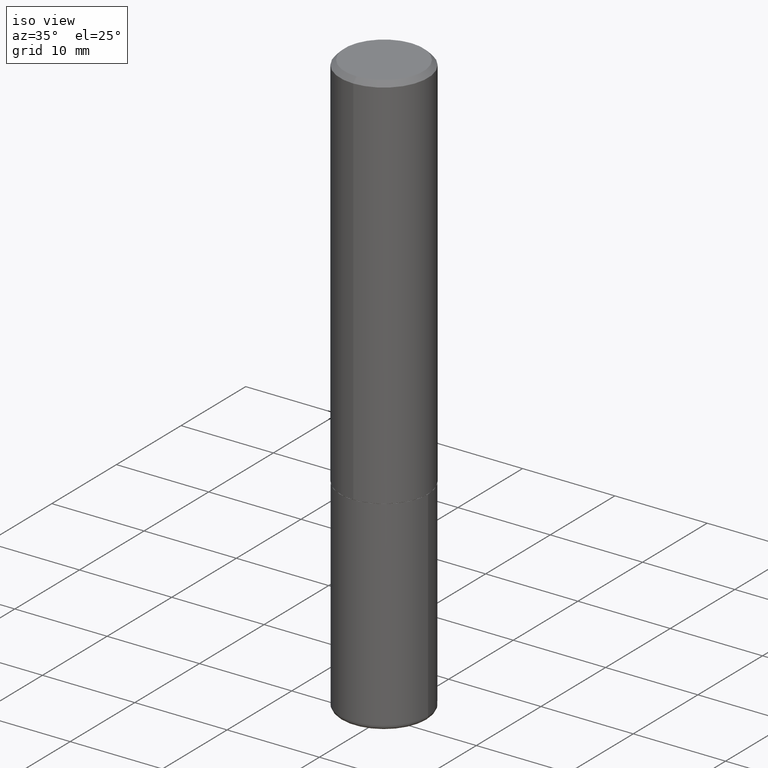
[diagram: clean part render]
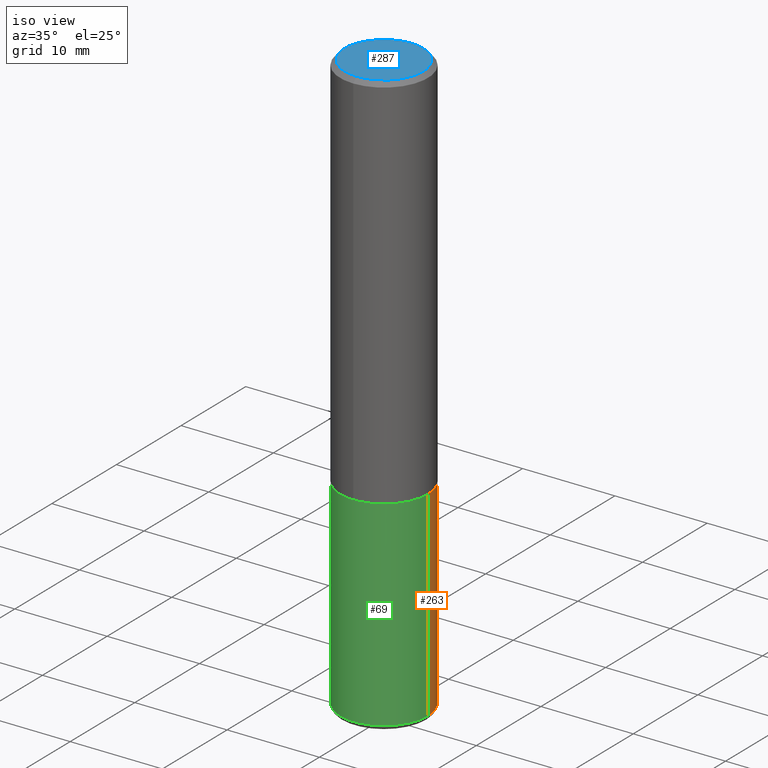
[diagram: same view with three faces highlighted in distinct colors, each labeled with its STEP entity id]
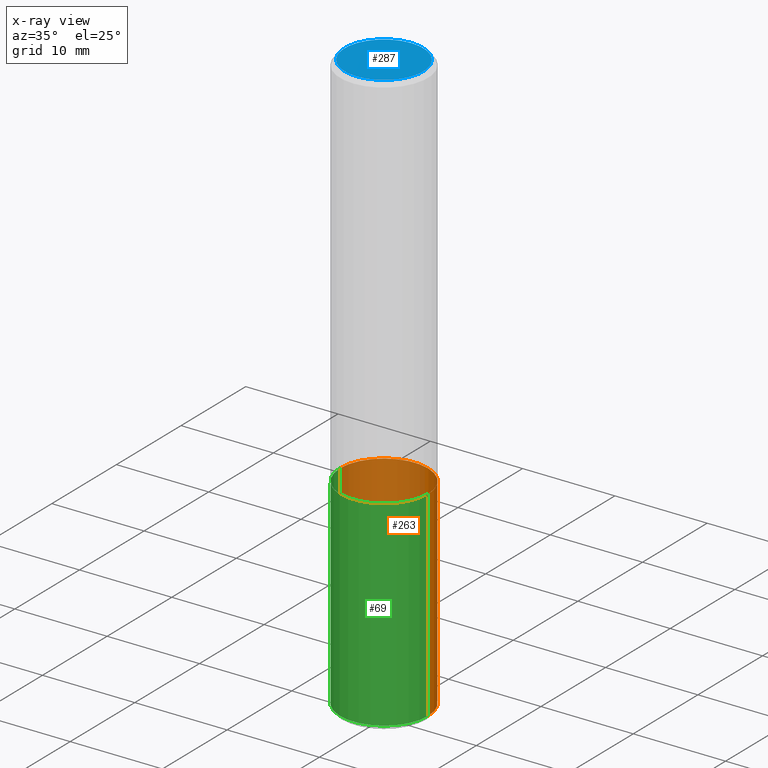
[diagram: x-ray of the same camera — body ghosted, the three highlighted faces saturated]
A machine part, iso view with three faces highlighted in distinct colors.
The next image is the same camera in x-ray (body ghosted, the three faces saturated) — at least one of them is partly hidden behind the body in this view.
Their STEP definitions:

[orange] entity #263 — the highlighted cylindrical surface (partial cylindrical patch) has radius 4.7625 mm, axis along (-0, 0, 1).
#3 = CARTESIAN_POINT ( 'NONE',  ( 6.064762639339139522E-29, -8.658873720331001644E-15, -2.480000000000000426 ) ) ;
#19 = DIRECTION ( 'NONE',  ( -2.445468806185136597E-29, 3.491481338843145583E-15, 1.000000000000000000 ) ) ;
#27 = DIRECTION ( 'NONE',  ( -2.445468806185136877E-29, 3.491481338843145188E-15, 1.000000000000000000 ) ) ;
#41 = DIRECTION ( 'NONE',  ( 1.000000000000000000, -6.982962677686266711E-15, 4.876176775795935793E-29 ) ) ;
#59 = DIRECTION ( 'NONE',  ( 1.000000000000000000, -6.982962677686265922E-15, 0.000000000000000000 ) ) ;
#63 = CARTESIAN_POINT ( 'NONE',  ( 0.1874999999999999722, -6.982962677686288010E-15, -1.625000000000000222 ) ) ;
#66 = CARTESIAN_POINT ( 'NONE',  ( 0.000000000000000000, 0.000000000000000000, 0.000000000000000000 ) ) ;
#74 = DIRECTION ( 'NONE',  ( -2.445468806185136597E-29, 3.491481338843145583E-15, 1.000000000000000000 ) ) ;
#87 = CARTESIAN_POINT ( 'NONE',  ( 0.1874999999999999445, -1.309305502066174614E-15, 9.142831454617376809E-30 ) ) ;
#105 = ORIENTED_EDGE ( 'NONE', *, *, #415, .T. ) ;
#107 = EDGE_CURVE ( 'NONE', #317, #372, #363, .T. ) ;
#130 = CARTESIAN_POINT ( 'NONE',  ( -0.1874999999999998890, -7.326606090780815374E-15, -2.480000000000000426 ) ) ;
#138 = ORIENTED_EDGE ( 'NONE', *, *, #107, .F. ) ;
#149 = DIRECTION ( 'NONE',  ( 1.000000000000000000, -6.982962677686269077E-15, 0.000000000000000000 ) ) ;
#166 = CYLINDRICAL_SURFACE ( 'NONE', #244, 0.1874999999999999445 ) ;
#167 = CARTESIAN_POINT ( 'NONE',  ( 0.1874999999999998890, -9.968179222397176653E-15, -2.480000000000000426 ) ) ;
#171 = DIRECTION ( 'NONE',  ( -2.445468806185136877E-29, 3.491481338843145188E-15, 1.000000000000000000 ) ) ;
#175 = CARTESIAN_POINT ( 'NONE',  ( -0.1874999999999999722, -5.833997818425370658E-15, -1.625000000000000222 ) ) ;
#244 = AXIS2_PLACEMENT_3D ( 'NONE', #66, #74, #41 ) ;
#246 = EDGE_LOOP ( 'NONE', ( #105, #347, #138, #373 ) ) ;
#256 = CIRCLE ( 'NONE', #299, 0.1874999999999999167 ) ;
#263 = ADVANCED_FACE ( 'NONE', ( #366 ), #166, .T. ) ;
#266 = AXIS2_PLACEMENT_3D ( 'NONE', #276, #19, #149 ) ;
#267 = LINE ( 'NONE', #389, #319 ) ;
#276 = CARTESIAN_POINT ( 'NONE',  ( 3.973886810050848091E-29, -5.673657175620113002E-15, -1.625000000000000222 ) ) ;
#277 = EDGE_CURVE ( 'NONE', #338, #317, #370, .T. ) ;
#299 = AXIS2_PLACEMENT_3D ( 'NONE', #3, #418, #59 ) ;
#317 = VERTEX_POINT ( 'NONE', #63 ) ;
#319 = VECTOR ( 'NONE', #171, 39.37007874015748143 ) ;
#335 = VECTOR ( 'NONE', #27, 39.37007874015748143 ) ;
#338 = VERTEX_POINT ( 'NONE', #167 ) ;
#347 = ORIENTED_EDGE ( 'NONE', *, *, #391, .T. ) ;
#363 = CIRCLE ( 'NONE', #266, 0.1874999999999999722 ) ;
#366 = FACE_OUTER_BOUND ( 'NONE', #246, .T. ) ;
#369 = VERTEX_POINT ( 'NONE', #130 ) ;
#370 = LINE ( 'NONE', #87, #335 ) ;
#372 = VERTEX_POINT ( 'NONE', #175 ) ;
#373 = ORIENTED_EDGE ( 'NONE', *, *, #277, .F. ) ;
#389 = CARTESIAN_POINT ( 'NONE',  ( -0.1874999999999999445, 1.332267629550187454E-15, -9.223003294227945188E-30 ) ) ;
#391 = EDGE_CURVE ( 'NONE', #369, #372, #267, .T. ) ;
#415 = EDGE_CURVE ( 'NONE', #338, #369, #256, .T. ) ;
#418 = DIRECTION ( 'NONE',  ( -2.445468806185136597E-29, 3.491481338843145583E-15, 1.000000000000000000 ) ) ;

[blue] entity #287 — the highlighted planar face has unit normal (0, -0, -1).
#10 = ORIENTED_EDGE ( 'NONE', *, *, #115, .T. ) ;
#20 = FACE_OUTER_BOUND ( 'NONE', #67, .T. ) ;
#43 = CIRCLE ( 'NONE', #292, 0.1674999999999997879 ) ;
#67 = EDGE_LOOP ( 'NONE', ( #214, #10 ) ) ;
#70 = AXIS2_PLACEMENT_3D ( 'NONE', #343, #161, #291 ) ;
#78 = AXIS2_PLACEMENT_3D ( 'NONE', #258, #346, #314 ) ;
#79 = PLANE ( 'NONE',  #78 ) ;
#89 = DIRECTION ( 'NONE',  ( -2.431228416407527584E-29, 3.511874387517332860E-15, 1.000000000000000000 ) ) ;
#115 = EDGE_CURVE ( 'NONE', #273, #143, #43, .T. ) ;
#128 = CARTESIAN_POINT ( 'NONE',  ( -2.988810848334046944E-45, 4.317294169713617776E-31, 1.229341853757378941E-16 ) ) ;
#133 = EDGE_CURVE ( 'NONE', #143, #273, #341, .T. ) ;
#143 = VERTEX_POINT ( 'NONE', #154 ) ;
#154 = CARTESIAN_POINT ( 'NONE',  ( 1.239475875289311710E-15, 0.1674999999999997879, -4.653047745334146253E-16 ) ) ;
#161 = DIRECTION ( 'NONE',  ( -2.431228416407527584E-29, 3.511874387517332860E-15, 1.000000000000000000 ) ) ;
#214 = ORIENTED_EDGE ( 'NONE', *, *, #133, .T. ) ;
#258 = CARTESIAN_POINT ( 'NONE',  ( 1.169646248512448215E-15, 0.1674999999999997879, -5.267718672212835477E-16 ) ) ;
#273 = VERTEX_POINT ( 'NONE', #334 ) ;
#281 = DIRECTION ( 'NONE',  ( -6.982962677686266711E-15, -1.000000000000000000, 3.511874387517332466E-15 ) ) ;
#287 = ADVANCED_FACE ( 'NONE', ( #20 ), #79, .F. ) ;
#291 = DIRECTION ( 'NONE',  ( -6.982962677686266711E-15, -1.000000000000000000, 3.511874387517332466E-15 ) ) ;
#292 = AXIS2_PLACEMENT_3D ( 'NONE', #128, #89, #281 ) ;
#314 = DIRECTION ( 'NONE',  ( 6.982962677686265922E-15, 1.000000000000000000, -3.511874387517332860E-15 ) ) ;
#334 = CARTESIAN_POINT ( 'NONE',  ( -1.217738394604445653E-15, -0.1674999999999997879, 7.111731452848904136E-16 ) ) ;
#341 = CIRCLE ( 'NONE', #70, 0.1674999999999997879 ) ;
#343 = CARTESIAN_POINT ( 'NONE',  ( -2.988810848334046944E-45, 4.317294169713617776E-31, 1.229341853757378941E-16 ) ) ;
#346 = DIRECTION ( 'NONE',  ( 2.431228416407527304E-29, -3.511874387517332860E-15, -1.000000000000000000 ) ) ;

[green] entity #69 — the highlighted cylindrical surface (partial cylindrical patch) has radius 4.7625 mm, axis along (-0, 0, 1).
#27 = DIRECTION ( 'NONE',  ( -2.445468806185136877E-29, 3.491481338843145188E-15, 1.000000000000000000 ) ) ;
#33 = CIRCLE ( 'NONE', #195, 0.1874999999999999167 ) ;
#50 = CIRCLE ( 'NONE', #275, 0.1874999999999999722 ) ;
#56 = DIRECTION ( 'NONE',  ( 1.000000000000000000, -6.982962677686269077E-15, 0.000000000000000000 ) ) ;
#63 = CARTESIAN_POINT ( 'NONE',  ( 0.1874999999999999722, -6.982962677686288010E-15, -1.625000000000000222 ) ) ;
#69 = ADVANCED_FACE ( 'NONE', ( #146 ), #189, .T. ) ;
#76 = DIRECTION ( 'NONE',  ( 1.000000000000000000, -6.982962677686266711E-15, 4.876176775795935793E-29 ) ) ;
#81 = ORIENTED_EDGE ( 'NONE', *, *, #277, .T. ) ;
#85 = EDGE_CURVE ( 'NONE', #369, #338, #33, .T. ) ;
#87 = CARTESIAN_POINT ( 'NONE',  ( 0.1874999999999999445, -1.309305502066174614E-15, 9.142831454617376809E-30 ) ) ;
#94 = CARTESIAN_POINT ( 'NONE',  ( 3.973886810050848091E-29, -5.673657175620113002E-15, -1.625000000000000222 ) ) ;
#110 = ORIENTED_EDGE ( 'NONE', *, *, #391, .F. ) ;
#116 = CARTESIAN_POINT ( 'NONE',  ( 6.064762639339139522E-29, -8.658873720331001644E-15, -2.480000000000000426 ) ) ;
#130 = CARTESIAN_POINT ( 'NONE',  ( -0.1874999999999998890, -7.326606090780815374E-15, -2.480000000000000426 ) ) ;
#146 = FACE_OUTER_BOUND ( 'NONE', #212, .T. ) ;
#167 = CARTESIAN_POINT ( 'NONE',  ( 0.1874999999999998890, -9.968179222397176653E-15, -2.480000000000000426 ) ) ;
#171 = DIRECTION ( 'NONE',  ( -2.445468806185136877E-29, 3.491481338843145188E-15, 1.000000000000000000 ) ) ;
#175 = CARTESIAN_POINT ( 'NONE',  ( -0.1874999999999999722, -5.833997818425370658E-15, -1.625000000000000222 ) ) ;
#181 = DIRECTION ( 'NONE',  ( -2.445468806185136597E-29, 3.491481338843145583E-15, 1.000000000000000000 ) ) ;
#188 = CARTESIAN_POINT ( 'NONE',  ( 0.000000000000000000, 0.000000000000000000, 0.000000000000000000 ) ) ;
#189 = CYLINDRICAL_SURFACE ( 'NONE', #376, 0.1874999999999999445 ) ;
#195 = AXIS2_PLACEMENT_3D ( 'NONE', #116, #211, #320 ) ;
#199 = EDGE_CURVE ( 'NONE', #372, #317, #50, .T. ) ;
#211 = DIRECTION ( 'NONE',  ( -2.445468806185136597E-29, 3.491481338843145583E-15, 1.000000000000000000 ) ) ;
#212 = EDGE_LOOP ( 'NONE', ( #110, #324, #81, #240 ) ) ;
#224 = DIRECTION ( 'NONE',  ( -2.445468806185136597E-29, 3.491481338843145583E-15, 1.000000000000000000 ) ) ;
#240 = ORIENTED_EDGE ( 'NONE', *, *, #199, .F. ) ;
#267 = LINE ( 'NONE', #389, #319 ) ;
#275 = AXIS2_PLACEMENT_3D ( 'NONE', #94, #224, #56 ) ;
#277 = EDGE_CURVE ( 'NONE', #338, #317, #370, .T. ) ;
#317 = VERTEX_POINT ( 'NONE', #63 ) ;
#319 = VECTOR ( 'NONE', #171, 39.37007874015748143 ) ;
#320 = DIRECTION ( 'NONE',  ( 1.000000000000000000, -6.982962677686265922E-15, 0.000000000000000000 ) ) ;
#324 = ORIENTED_EDGE ( 'NONE', *, *, #85, .T. ) ;
#335 = VECTOR ( 'NONE', #27, 39.37007874015748143 ) ;
#338 = VERTEX_POINT ( 'NONE', #167 ) ;
#369 = VERTEX_POINT ( 'NONE', #130 ) ;
#370 = LINE ( 'NONE', #87, #335 ) ;
#372 = VERTEX_POINT ( 'NONE', #175 ) ;
#376 = AXIS2_PLACEMENT_3D ( 'NONE', #188, #181, #76 ) ;
#389 = CARTESIAN_POINT ( 'NONE',  ( -0.1874999999999999445, 1.332267629550187454E-15, -9.223003294227945188E-30 ) ) ;
#391 = EDGE_CURVE ( 'NONE', #369, #372, #267, .T. ) ;